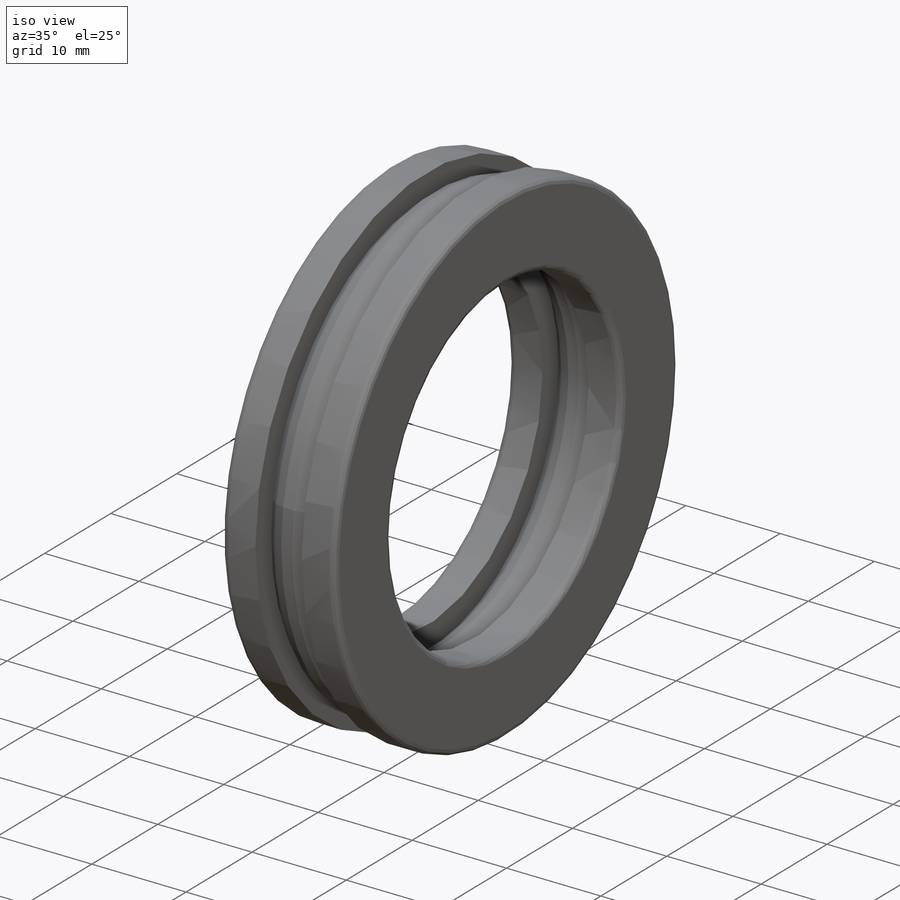
[diagram: iso view]
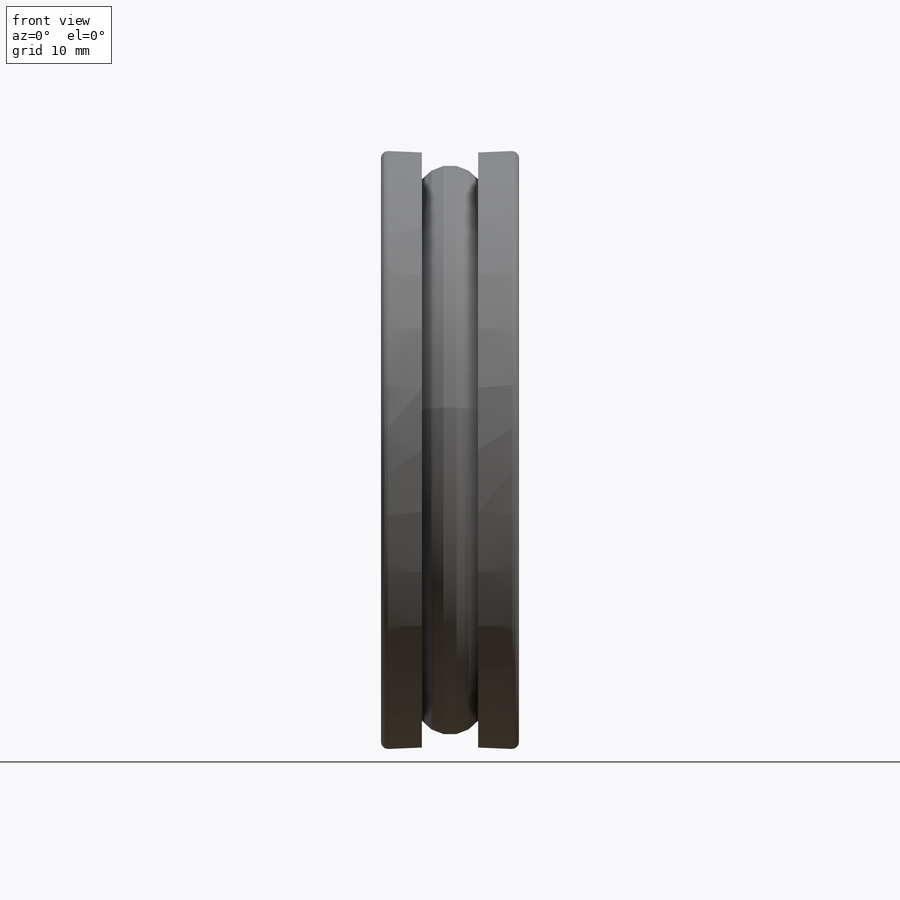
[diagram: front view]
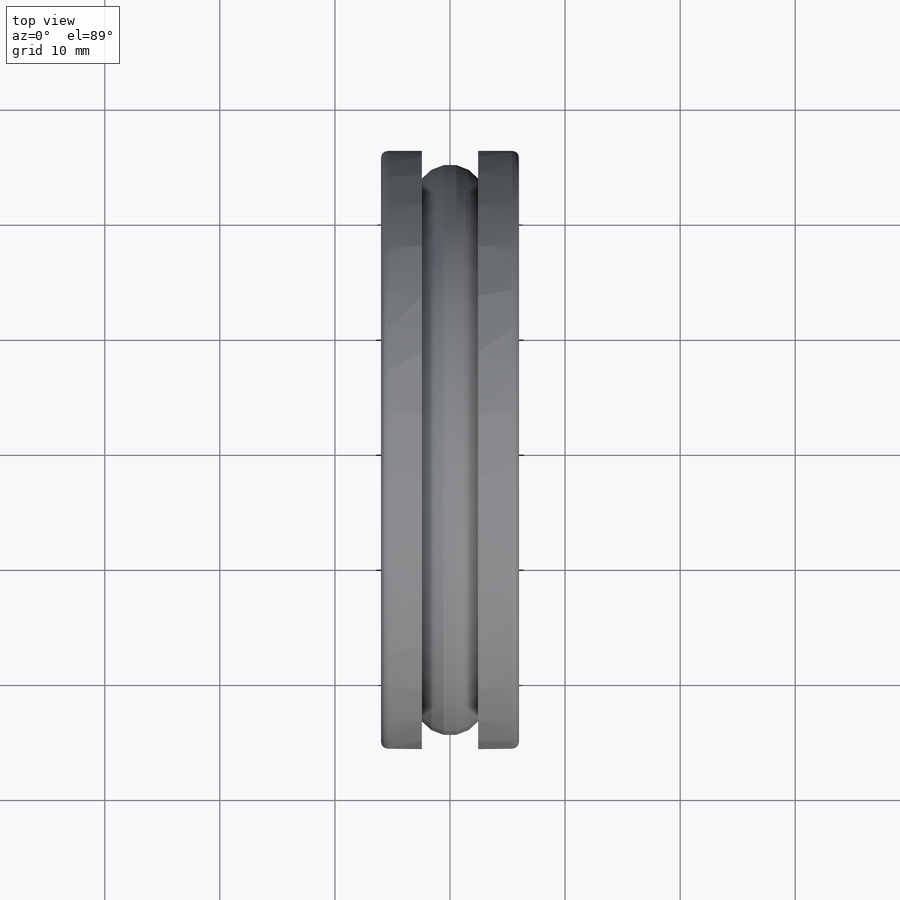
[diagram: top view]
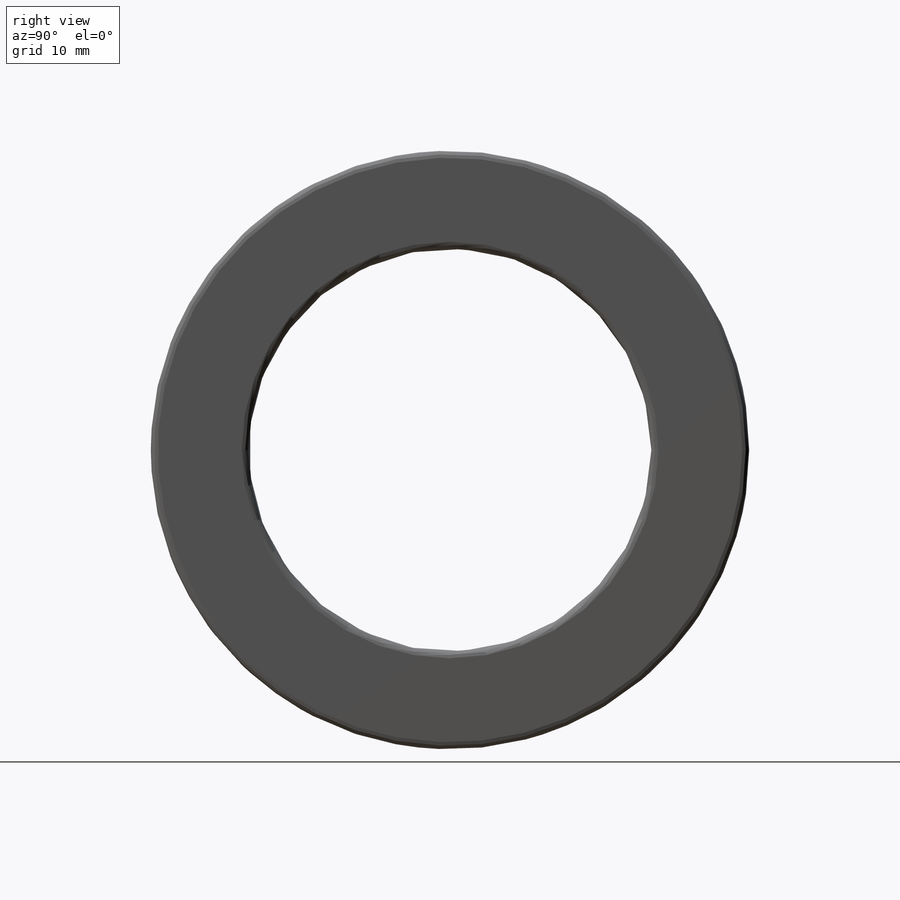
[diagram: right view]
SOLIDWORKS PART (.sldprt)
format: sldprt  version: not decoded by parser v0  size: 210,432 bytes
history: native  units: mm
features: pattern_circular x28, sketch x5, revolve x4, plane x3, mirror x3, material x1 (+12 scaffold rows collapsed; 1 parser-record rows omitted)
feature tree (57):
  parser-record x1  (decoder bookkeeping rows leaked as tree rows — omitted from the tree; the rows remain in map.json)
  scaffold x12  (default folders/planes/origin — collapsed)
  material  "Material <not specified>"
  plane  "Plane1"
  plane  "Plane2"
  plane  "Plane3"
  sketch  "Clipboard"  dims[c1.BallCLRad=22.225mm c2.BallCLRad=21.75mm c2.D2=20.0mm c2.Count=2.0deg c2.D3=~22.36068mm c2.Show_count=2.0deg c2.D1=20.0mm c2.Max_count=2.0deg c3.D1=20.0mm c3.Min_count=1.0deg]
  sketch  "InnRacSke"  dims[Ball_diameter=6.07mm Fillet_Radius=0.6mm D4=1.524mm ID=35.0mm OD=52.0mm Width=12.0mm gap=4.896mm BallCLRad=21.75mm]
  revolve  "Race"  Angle=360deg
  sketch  "BalDetSke"  dims[Ball_diameter=6.12mm BallCLRad=21.75mm]
  revolve  "BallDetailed"  Angle=360deg
  sketch  "BalSimSke"  dims[Ball_diameter=6.12mm BallCLRad=21.75mm]
  revolve  "BallsSimplified"  Angle=360deg
  mirror  "Mirror1"
  pattern_circular  "BallsDetailed"  Count=2 Angle=180deg
  sketch  "CagSpiSke"  dims[Thickness=1.53mm ID=36.19mm OD=50.81mm]
  revolve  "CageSpine"  Angle=0.001deg
  pattern_circular  "CurrentVersion"  [2 undecoded]
  pattern_circular  "EditFunction"  [2 undecoded]
  pattern_circular  "Type"  [2 undecoded]
  pattern_circular  "SubType"  [2 undecoded]
  pattern_circular  "Application"  [2 undecoded]
  pattern_circular  "CurrentVersion"  [2 undecoded]
  pattern_circular  "EditFunction"  [2 undecoded]
  pattern_circular  "Type"  [2 undecoded]
  pattern_circular  "SubType"  [2 undecoded]
  mirror  "CimBearingSettings6.05779"
  pattern_circular  "STANDARD"  [2 undecoded]
  pattern_circular  "TYPE"  [2 undecoded]
  pattern_circular  "SIZE"  [2 undecoded]
  pattern_circular  "DRAW_CAGE"  [2 undecoded]
  pattern_circular  "AUTO_SAVE"  [2 undecoded]
  pattern_circular  "CREATION_METHOD"  [2 undecoded]
  pattern_circular  "LOCATION_METHOD"  [2 undecoded]
  pattern_circular  "STANDARD"  [2 undecoded]
  pattern_circular  "TYPE"  [2 undecoded]
  pattern_circular  "SIZE"  [2 undecoded]
  pattern_circular  "DRAW_CAGE"  [2 undecoded]
  pattern_circular  "AUTO_SAVE"  [2 undecoded]
  pattern_circular  "CREATION_METHOD"  [2 undecoded]
  pattern_circular  "LOCATION_METHOD"  [2 undecoded]
  mirror  "SolidworksEditDefinition"
  pattern_circular  "PartNumberID"  [2 undecoded]
  pattern_circular  "ConfigurationName"  CopiedFlag=1  [2 undecoded]
  pattern_circular  "PartNumberID"  [2 undecoded]
  pattern_circular  "ConfigurationName"  CopiedFlag=0  [2 undecoded]
decode coverage: 12 of 40 modeling features carry decoded parameters
note: ~ marks probable driven/reference dimensions
note: 54 parameter values undecoded
note: suppression state not decoded; provenance and decode notes live in map.json
